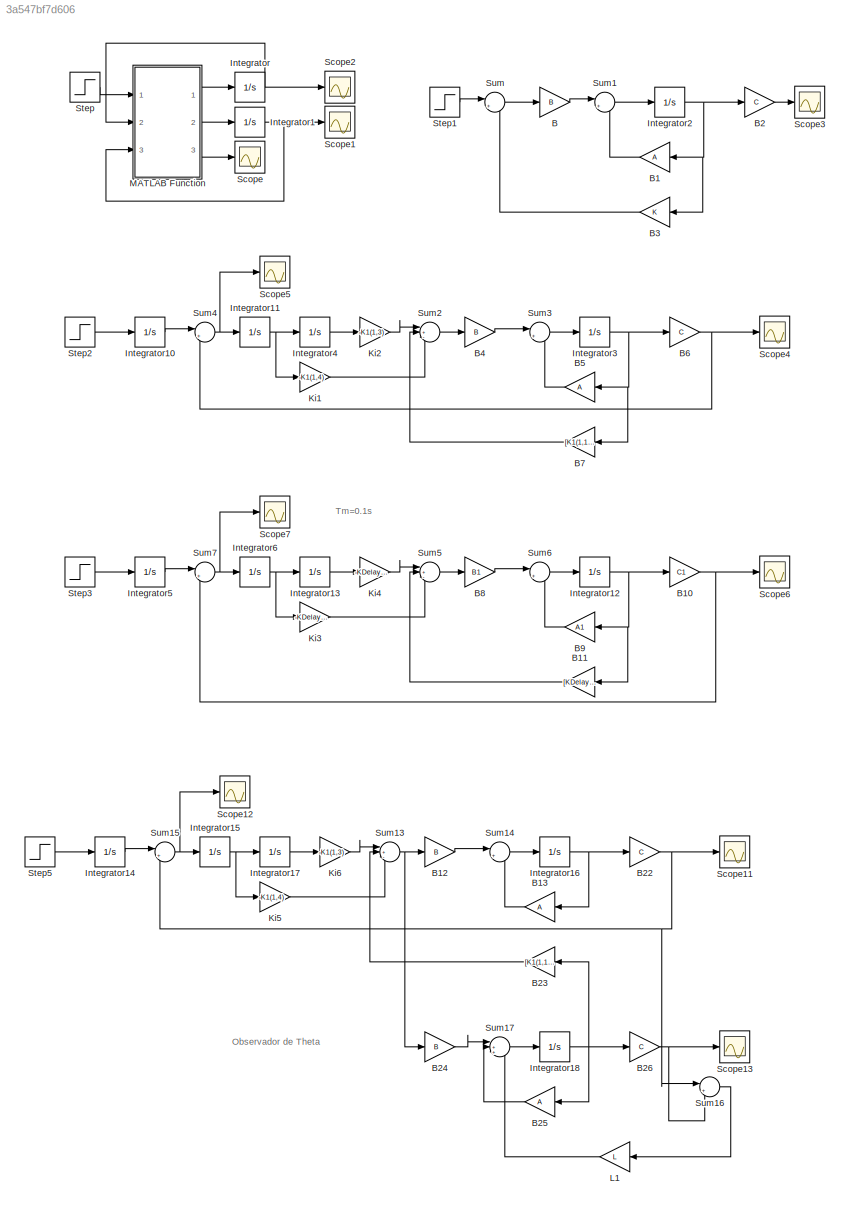
MODEL slx_3a547bf7d606
KIND model
CONFIG AbsTol = auto
CONFIG EnableMultiTasking = off
CONFIG FixedStep = auto
CONFIG MaxStep = auto
CONFIG MinStep = auto
CONFIG RelTol = 1e-3
CONFIG SampleTimeConstraint = Unconstrained
CONFIG SolverName = VariableStepAuto
CONFIG StartTime = 0.0
CONFIG StopTime = 10
BLOCK [Gain] B
  Gain = B
  Multiplication = Matrix(K*u)
BLOCK [Gain] B1
  Gain = A
  Multiplication = Matrix(K*u)
  NameLocation = top
BLOCK [Gain] B10
  Gain = C1
  Multiplication = Matrix(K*u)
BLOCK [Gain] B11
  Gain = [KDelay(1,1),KDelay(1,2),KDelay(1,3),KDelay(1,4)]
  Multiplication = Matrix(K*u)
  NameLocation = top
BLOCK [Gain] B12
  Gain = B
  Multiplication = Matrix(K*u)
BLOCK [Gain] B13
  Gain = A
  Multiplication = Matrix(K*u)
  NameLocation = top
BLOCK [Gain] B2
  Gain = C
  Multiplication = Matrix(K*u)
BLOCK [Gain] B22
  Gain = C
  Multiplication = Matrix(K*u)
BLOCK [Gain] B23
  Gain = [K1(1,1),K1(1,2)]
  Multiplication = Matrix(K*u)
  NameLocation = top
BLOCK [Gain] B24
  Gain = B
  Multiplication = Matrix(K*u)
BLOCK [Gain] B25
  Gain = A
  Multiplication = Matrix(K*u)
  NameLocation = top
BLOCK [Gain] B26
  Gain = C
  Multiplication = Matrix(K*u)
BLOCK [Gain] B3
  Gain = K
  Multiplication = Matrix(K*u)
  NameLocation = top
BLOCK [Gain] B4
  Gain = B
  Multiplication = Matrix(K*u)
BLOCK [Gain] B5
  Gain = A
  Multiplication = Matrix(K*u)
  NameLocation = top
BLOCK [Gain] B6
  Gain = C
  Multiplication = Matrix(K*u)
BLOCK [Gain] B7
  Gain = [K1(1,1),K1(1,2)]
  Multiplication = Matrix(K*u)
  NameLocation = top
BLOCK [Gain] B8
  Gain = B1
  Multiplication = Matrix(K*u)
BLOCK [Gain] B9
  Gain = A1
  Multiplication = Matrix(K*u)
  NameLocation = top
BLOCK [Integrator] Integrator
  Ports = [1, 1]
BLOCK [Integrator] Integrator1
  Ports = [1, 1]
BLOCK [Integrator] Integrator10
  Ports = [1, 1]
BLOCK [Integrator] Integrator11
  Ports = [1, 1]
BLOCK [Integrator] Integrator12
  Ports = [1, 1]
BLOCK [Integrator] Integrator13
  Ports = [1, 1]
BLOCK [Integrator] Integrator14
  Ports = [1, 1]
BLOCK [Integrator] Integrator15
  Ports = [1, 1]
BLOCK [Integrator] Integrator16
  Ports = [1, 1]
BLOCK [Integrator] Integrator17
  Ports = [1, 1]
BLOCK [Integrator] Integrator18
  Ports = [1, 1]
BLOCK [Integrator] Integrator2
  Ports = [1, 1]
BLOCK [Integrator] Integrator3
  Ports = [1, 1]
BLOCK [Integrator] Integrator4
  Ports = [1, 1]
BLOCK [Integrator] Integrator5
  Ports = [1, 1]
BLOCK [Integrator] Integrator6
  Ports = [1, 1]
BLOCK [Gain] Ki1
  Gain = -K1(1,4)
  Multiplication = Matrix(K*u)
BLOCK [Gain] Ki2
  Gain = -K1(1,3)
  Multiplication = Matrix(K*u)
BLOCK [Gain] Ki3
  Gain = -KDelay(1,6)
  Multiplication = Matrix(K*u)
BLOCK [Gain] Ki4
  Gain = -KDelay(1,5)
  Multiplication = Matrix(K*u)
BLOCK [Gain] Ki5
  Gain = -K1(1,4)
  Multiplication = Matrix(K*u)
BLOCK [Gain] Ki6
  Gain = -K1(1,3)
  Multiplication = Matrix(K*u)
BLOCK [Gain] L1
  Gain = L
  Multiplication = Matrix(K*u)
  NameLocation = top
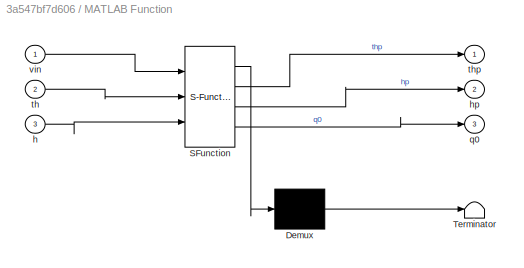
BLOCK [SubSystem] MATLAB Function
  ErrorFcn = Stateflow.Translate.translate
  PermitHierarchicalResolution = ExplicitOnly
  Ports = [3, 3]
  RequestExecContextInheritance = off
  SFBlockType = MATLAB Function
  TreatAsAtomicUnit = on
BLOCK [Demux] MATLAB Function/ Demux 
  Outputs = 1
  Ports = [1, 1]
BLOCK [S-Function] MATLAB Function/ SFunction 
  EnableBusSupport = on
  FunctionName = sf_sfun
  PortCounts = [3 4]
  Ports = [3, 4]
  SFcnIsStateOwnerBlock = off
  SFunctionDeploymentMode = off
  Tag = Stateflow S-Function 2
BLOCK [Terminator] MATLAB Function/ Terminator 
BLOCK [Inport] MATLAB Function/h
  Port = 3
BLOCK [Outport] MATLAB Function/hp
  Port = 2
BLOCK [Outport] MATLAB Function/q0
  Port = 3
BLOCK [Inport] MATLAB Function/th
  Port = 2
BLOCK [Outport] MATLAB Function/thp
BLOCK [Inport] MATLAB Function/vin
BLOCK [Scope] Scope
  Floating = off
  NumInputPorts = 1
  Ports = [1]
  ScopeSpecificationString = Simulink.scopes.TimeScopeBlockCfg('CurrentConfiguration', extmgr.ConfigurationSet(extmgr.Configuration('Core','General UI',true),extmgr.Configuration('Core','Source UI',true),extmgr.Configuration('Sources','WiredSimulink',true),extmgr.Configuration('Visuals','Time Domain',true,'SerializedDisplays',{struct('MinYLimReal','-7162.95239','MaxYLimReal','64466.57148','YLabelReal','','MinYLimMag','  0.000...<+1364ch>
BLOCK [Scope] Scope1
  Floating = off
  NumInputPorts = 1
  Ports = [1]
  ScopeSpecificationString = Simulink.scopes.TimeScopeBlockCfg('CurrentConfiguration', extmgr.ConfigurationSet(extmgr.Configuration('Core','General UI',true),extmgr.Configuration('Core','Source UI',true),extmgr.Configuration('Sources','WiredSimulink',true,'DataLoggingVariableName','ScopeData1'),extmgr.Configuration('Visuals','Time Domain',true,'SerializedDisplays',{struct('MinYLimReal','-164185.23805','MaxYLimReal','1477667.1...<+1412ch>
BLOCK [Scope] Scope11
  Floating = off
  NumInputPorts = 1
  Ports = [1]
  ScopeSpecificationString = Simulink.scopes.TimeScopeBlockCfg('CurrentConfiguration', extmgr.ConfigurationSet(extmgr.Configuration('Core','General UI',true),extmgr.Configuration('Core','Source UI',true),extmgr.Configuration('Sources','WiredSimulink',true,'DataLoggingVariableName','ScopeData1'),extmgr.Configuration('Visuals','Time Domain',true,'SerializedDisplays',{struct('MinYLimReal','-1.25','MaxYLimReal','11.25','YLabelRea...<+1378ch>
BLOCK [Scope] Scope12
  Floating = off
  NumInputPorts = 1
  Ports = [1]
  ScopeSpecificationString = Simulink.scopes.TimeScopeBlockCfg('CurrentConfiguration', extmgr.ConfigurationSet(extmgr.Configuration('Core','General UI',true),extmgr.Configuration('Core','Source UI',true),extmgr.Configuration('Sources','WiredSimulink',true,'DataLoggingVariableName','ScopeData2'),extmgr.Configuration('Visuals','Time Domain',true,'SerializedDisplays',{struct('MinYLimReal','-0.00083','MaxYLimReal','0.0075','YLabe...<+1417ch>
BLOCK [Scope] Scope13
  Floating = off
  NumInputPorts = 1
  Ports = [1]
  ScopeSpecificationString = Simulink.scopes.TimeScopeBlockCfg('CurrentConfiguration', extmgr.ConfigurationSet(extmgr.Configuration('Core','General UI',true),extmgr.Configuration('Core','Source UI',true),extmgr.Configuration('Sources','WiredSimulink',true,'DataLoggingVariableName','ScopeData3'),extmgr.Configuration('Visuals','Time Domain',true,'SerializedDisplays',{struct('MinYLimReal','-1.25','MaxYLimReal','11.25','YLabelRea...<+1379ch>
BLOCK [Scope] Scope2
  Floating = off
  NumInputPorts = 1
  Ports = [1]
  ScopeSpecificationString = Simulink.scopes.TimeScopeBlockCfg('CurrentConfiguration', extmgr.ConfigurationSet(extmgr.Configuration('Core','General UI',true),extmgr.Configuration('Core','Source UI',true),extmgr.Configuration('Sources','WiredSimulink',true,'DataLoggingVariableName','ScopeData2'),extmgr.Configuration('Visuals','Time Domain',true,'SerializedDisplays',{struct('MinYLimReal','-500.00000','MaxYLimReal','4500.00000',...<+1387ch>
BLOCK [Scope] Scope3
  Floating = off
  NumInputPorts = 1
  Ports = [1]
  ScopeSpecificationString = Simulink.scopes.TimeScopeBlockCfg('CurrentConfiguration', extmgr.ConfigurationSet(extmgr.Configuration('Core','General UI',true),extmgr.Configuration('Core','Source UI',true),extmgr.Configuration('Sources','WiredSimulink',true,'DataLoggingVariableName','ScopeData1'),extmgr.Configuration('Visuals','Time Domain',true,'SerializedDisplays',{struct('MinYLimReal','-7812.4997','MaxYLimReal','70312.49731'...<+1417ch>
BLOCK [Scope] Scope4
  Floating = off
  NumInputPorts = 1
  Ports = [1]
  ScopeSpecificationString = Simulink.scopes.TimeScopeBlockCfg('CurrentConfiguration', extmgr.ConfigurationSet(extmgr.Configuration('Core','General UI',true),extmgr.Configuration('Core','Source UI',true),extmgr.Configuration('Sources','WiredSimulink',true,'DataLoggingVariableName','ScopeData2'),extmgr.Configuration('Visuals','Time Domain',true,'SerializedDisplays',{struct('MinYLimReal','-1.25','MaxYLimReal','11.25','YLabelRea...<+1378ch>
BLOCK [Scope] Scope5
  Floating = off
  NumInputPorts = 1
  Ports = [1]
  ScopeSpecificationString = Simulink.scopes.TimeScopeBlockCfg('CurrentConfiguration', extmgr.ConfigurationSet(extmgr.Configuration('Core','General UI',true),extmgr.Configuration('Core','Source UI',true),extmgr.Configuration('Sources','WiredSimulink',true,'DataLoggingVariableName','ScopeData3'),extmgr.Configuration('Visuals','Time Domain',true,'SerializedDisplays',{struct('MinYLimReal','-0.00083','MaxYLimReal','0.0075','YLabe...<+1390ch>
BLOCK [Scope] Scope6
  Floating = off
  NumInputPorts = 1
  Ports = [1]
  ScopeSpecificationString = Simulink.scopes.TimeScopeBlockCfg('CurrentConfiguration', extmgr.ConfigurationSet(extmgr.Configuration('Core','General UI',true),extmgr.Configuration('Core','Source UI',true),extmgr.Configuration('Sources','WiredSimulink',true,'DataLoggingVariableName','ScopeData1'),extmgr.Configuration('Visuals','Time Domain',true,'SerializedDisplays',{struct('MinYLimReal','-1.2375','MaxYLimReal','11.1375','YLabe...<+1391ch>
BLOCK [Scope] Scope7
  Floating = off
  NumInputPorts = 1
  Ports = [1]
  ScopeSpecificationString = Simulink.scopes.TimeScopeBlockCfg('CurrentConfiguration', extmgr.ConfigurationSet(extmgr.Configuration('Core','General UI',true),extmgr.Configuration('Core','Source UI',true),extmgr.Configuration('Sources','WiredSimulink',true,'DataLoggingVariableName','ScopeData2'),extmgr.Configuration('Visuals','Time Domain',true,'SerializedDisplays',{struct('MinYLimReal','-0.00038','MaxYLimReal','0.00342','YLab...<+1396ch>
BLOCK [Step] Step
  SampleTime = 0
  Time = 0
BLOCK [Step] Step1
  SampleTime = 0
  Time = 0
BLOCK [Step] Step2
  SampleTime = 0
  Time = 0
BLOCK [Step] Step3
  SampleTime = 0
  Time = 0.1
BLOCK [Step] Step5
  SampleTime = 0
  Time = 0
BLOCK [Sum] Sum
  Inputs = |+-
  Ports = [2, 1]
BLOCK [Sum] Sum1
  Inputs = |++
  Ports = [2, 1]
BLOCK [Sum] Sum13
  Inputs = |+-+
  Ports = [3, 1]
BLOCK [Sum] Sum14
  Inputs = |++
  Ports = [2, 1]
BLOCK [Sum] Sum15
  Inputs = |+-
  Ports = [2, 1]
BLOCK [Sum] Sum16
  Inputs = |+-
  Ports = [2, 1]
BLOCK [Sum] Sum17
  Inputs = |+++
  Ports = [3, 1]
BLOCK [Sum] Sum2
  Inputs = |+-+
  Ports = [3, 1]
BLOCK [Sum] Sum3
  Inputs = |++
  Ports = [2, 1]
BLOCK [Sum] Sum4
  Inputs = |+-
  Ports = [2, 1]
BLOCK [Sum] Sum5
  Inputs = |+-+
  Ports = [3, 1]
BLOCK [Sum] Sum6
  Inputs = |++
  Ports = [2, 1]
BLOCK [Sum] Sum7
  Inputs = |+-
  Ports = [2, 1]
ANNOTATION (root): Observador de Theta
ANNOTATION (root): Tm=0.1s
NET B10:1 -> Scope6:1, Sum7:2
LINE B11:1 -> Sum5:2
LINE B12:1 -> Sum14:1
LINE B13:1 -> Sum14:2
LINE B1:1 -> Sum1:2
NET B22:1 -> Scope11:1, Sum15:2, Sum16:1
LINE B23:1 -> Sum13:2
LINE B24:1 -> Sum17:1
LINE B25:1 -> Sum17:2
NET B26:1 -> Scope13:1, Sum16:2
LINE B2:1 -> Scope3:1
LINE B3:1 -> Sum:2
LINE B4:1 -> Sum3:1
LINE B5:1 -> Sum3:2
NET B6:1 -> Scope4:1, Sum4:2
LINE B7:1 -> Sum2:2
LINE B8:1 -> Sum6:1
LINE B9:1 -> Sum6:2
LINE B:1 -> Sum1:1
LINE Integrator10:1 -> Sum4:1
NET Integrator11:1 -> Integrator4:1, Ki1:1
NET Integrator12:1 -> B10:1, B11:1, B9:1
LINE Integrator13:1 -> Ki4:1
LINE Integrator14:1 -> Sum15:1
NET Integrator15:1 -> Integrator17:1, Ki5:1
NET Integrator16:1 -> B13:1, B22:1
LINE Integrator17:1 -> Ki6:1
NET Integrator18:1 -> B23:1, B25:1, B26:1
NET Integrator1:1 -> MATLAB Function:3, Scope1:1
NET Integrator2:1 -> B1:1, B2:1, B3:1
NET Integrator3:1 -> B5:1, B6:1, B7:1
LINE Integrator4:1 -> Ki2:1
LINE Integrator5:1 -> Sum7:1
NET Integrator6:1 -> Integrator13:1, Ki3:1
NET Integrator:1 -> MATLAB Function:2, Scope2:1
LINE Ki1:1 -> Sum2:3
LINE Ki2:1 -> Sum2:1
LINE Ki3:1 -> Sum5:3
LINE Ki4:1 -> Sum5:1
LINE Ki5:1 -> Sum13:3
LINE Ki6:1 -> Sum13:1
LINE L1:1 -> Sum17:3
LINE MATLAB Function:1 -> Integrator:1
LINE MATLAB Function:2 -> Integrator1:1
LINE MATLAB Function:3 -> Scope:1
LINE Step1:1 -> Sum:1
LINE Step2:1 -> Integrator10:1
LINE Step3:1 -> Integrator5:1
LINE Step5:1 -> Integrator14:1
LINE Step:1 -> MATLAB Function:1
NET Sum13:1 -> B12:1, B24:1
LINE Sum14:1 -> Integrator16:1
NET Sum15:1 -> Integrator15:1, Scope12:1
LINE Sum16:1 -> L1:1
LINE Sum17:1 -> Integrator18:1
LINE Sum1:1 -> Integrator2:1
LINE Sum2:1 -> B4:1
LINE Sum3:1 -> Integrator3:1
NET Sum4:1 -> Integrator11:1, Scope5:1
LINE Sum5:1 -> B8:1
LINE Sum6:1 -> Integrator12:1
NET Sum7:1 -> Integrator6:1, Scope7:1
LINE Sum:1 -> B:1
note: NET lines group one-source signal fan-out (src -> all destinations, sorted); 1:1 wires keep LINE
CHART MATLAB Function states=1 transitions=1
  STATE_LABEL 'eML_blk_kernel()'
  STATE_LABEL 'SCRIPT:\nfunction [thp,hp,q0] = fcn(vin,th,h)\n\nia=1;\nkw=0.1;\nC=1;\nk=50;\n\nthp=(1/kw)*(50*vin-10*ia);\nhp=(1/C)*(80*th-k*sqrt(h));\nq0=k*sqrt(h);\n\n'
CHART  states=0 transitions=0
